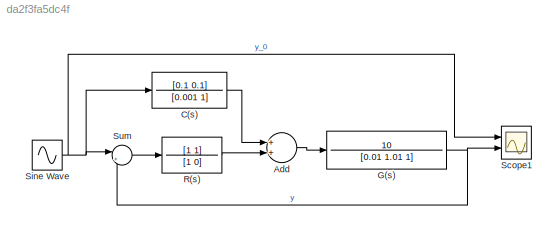
MODEL slx_da2f3fa5dc4f
KIND model
CONFIG AbsTol = auto
CONFIG EnableMultiTasking = on
CONFIG FixedStep = 1e-3
CONFIG MaxStep = auto
CONFIG MinStep = auto
CONFIG RelTol = 1e-3
CONFIG SampleTimeConstraint = Unconstrained
CONFIG Solver = FixedStepAuto
CONFIG SolverName = FixedStepAuto
CONFIG StartTime = 0.0
CONFIG StopTime = 0.2
BLOCK [Sum] Add
  InputSameDT = off
  OutDataTypeStr = Inherit: Inherit via internal rule
  Ports = [2, 1]
  SaturateOnIntegerOverflow = off
BLOCK [TransferFcn] C(s)
  Denominator = [0.001 1]
  Numerator = [0.1 0.1]
BLOCK [TransferFcn] G(s)
  Denominator = [0.01 1.01 1]
  Numerator = 10
BLOCK [TransferFcn] R(s)
  Denominator = [1 0]
  Numerator = [1 1]
BLOCK [Scope] Scope1
  Floating = off
  NumInputPorts = 2
  Ports = [2]
  ScopeSpecificationString = Simulink.scopes.TimeScopeBlockCfg('CurrentConfiguration', extmgr.ConfigurationSet(extmgr.Configuration('Core','General UI',true),extmgr.Configuration('Core','Source UI',true),extmgr.Configuration('Sources','WiredSimulink',true,'DataLoggingSaveFormat','StructureWithTime','DataLoggingLimitDataPoints',true,'DataLoggingDecimation','1','DataLoggingDecimateData',true,'DataLoggingVariableName','ScopeData...<+1761ch>
BLOCK [Sin] Sine Wave
  Frequency = 80
  Ports = [0, 1]
  SampleTime = 0
BLOCK [Sum] Sum
  IconShape = round
  Inputs = |+-
  Ports = [2, 1]
LINE Add:1 -> G(s):1
LINE C(s):1 -> Add:1
NET G(s):1 -> Scope1:2, Sum:2
LINE R(s):1 -> Add:2
NET Sine Wave:1 -> C(s):1, Scope1:1, Sum:1
LINE Sum:1 -> R(s):1
note: NET lines group one-source signal fan-out (src -> all destinations, sorted); 1:1 wires keep LINE
